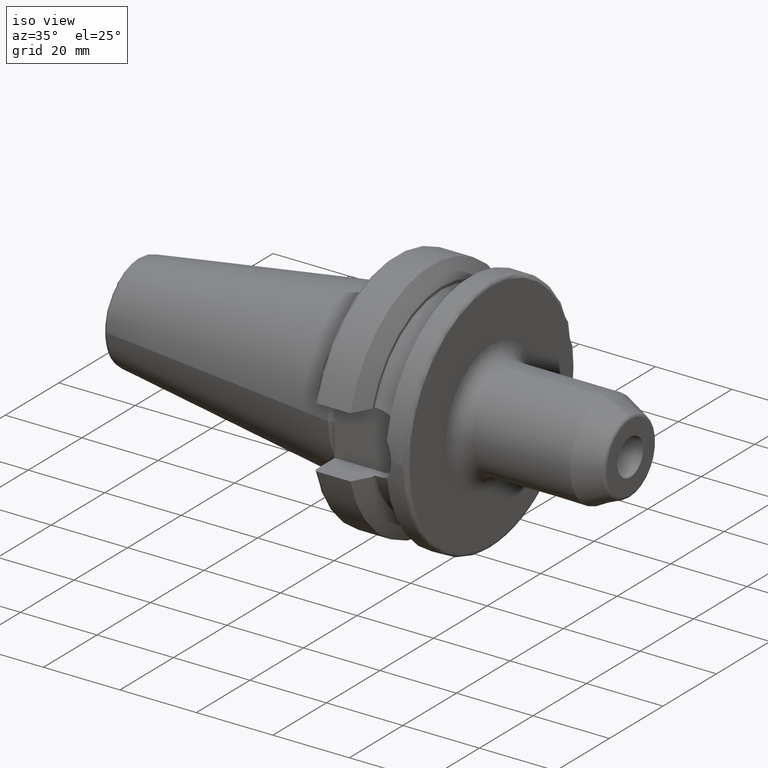
[diagram: clean part render]
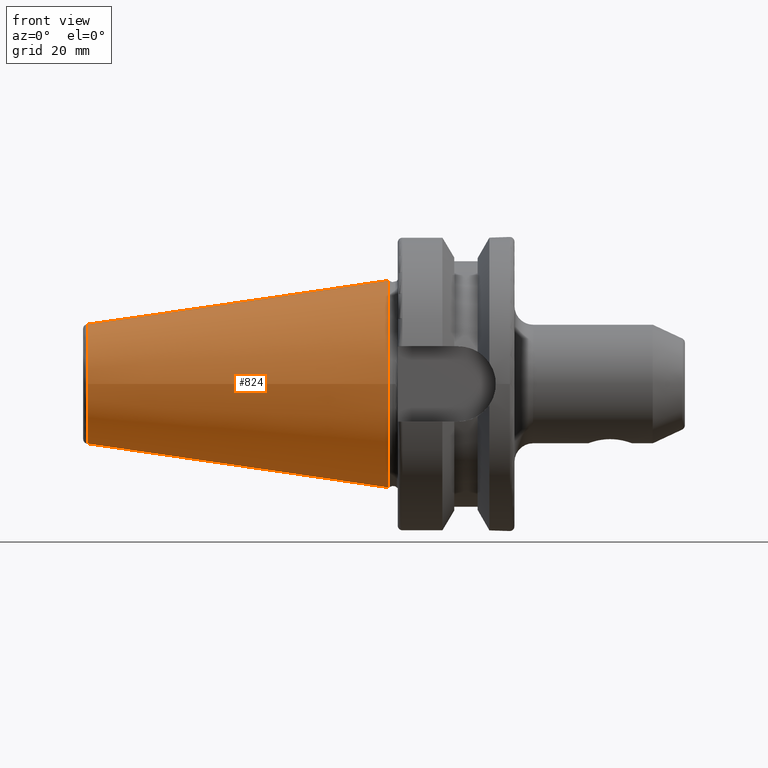
[diagram: tour spotlight — one face highlighted and labeled with its STEP entity id]
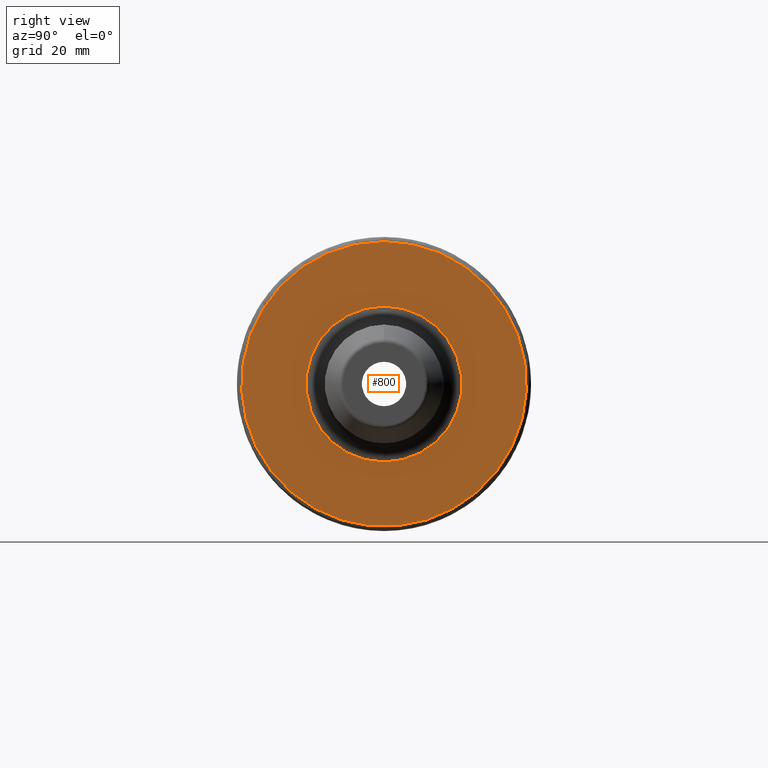
[diagram: tour spotlight — one face highlighted and labeled with its STEP entity id]
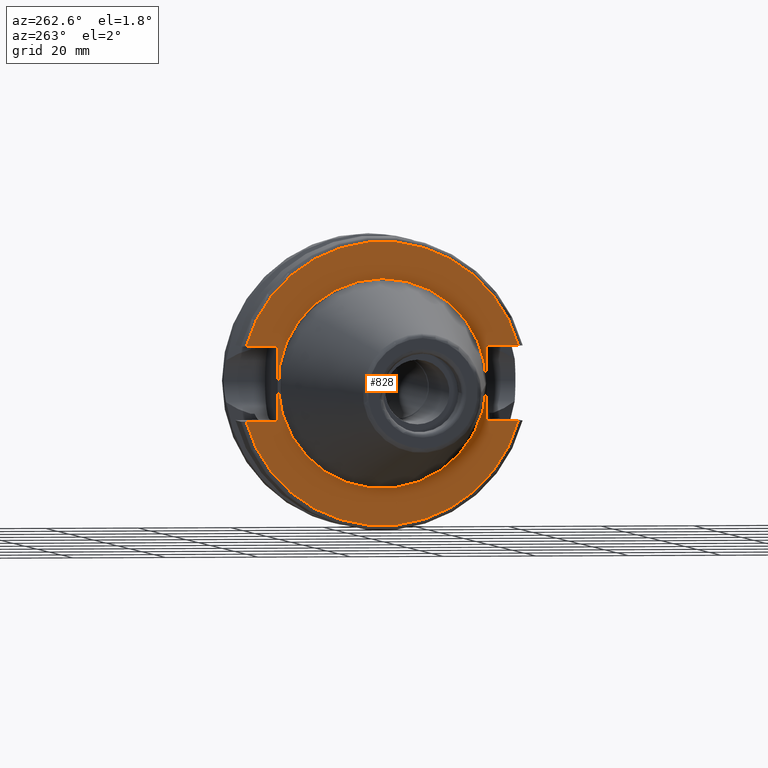
[diagram: tour spotlight — one face highlighted and labeled with its STEP entity id]
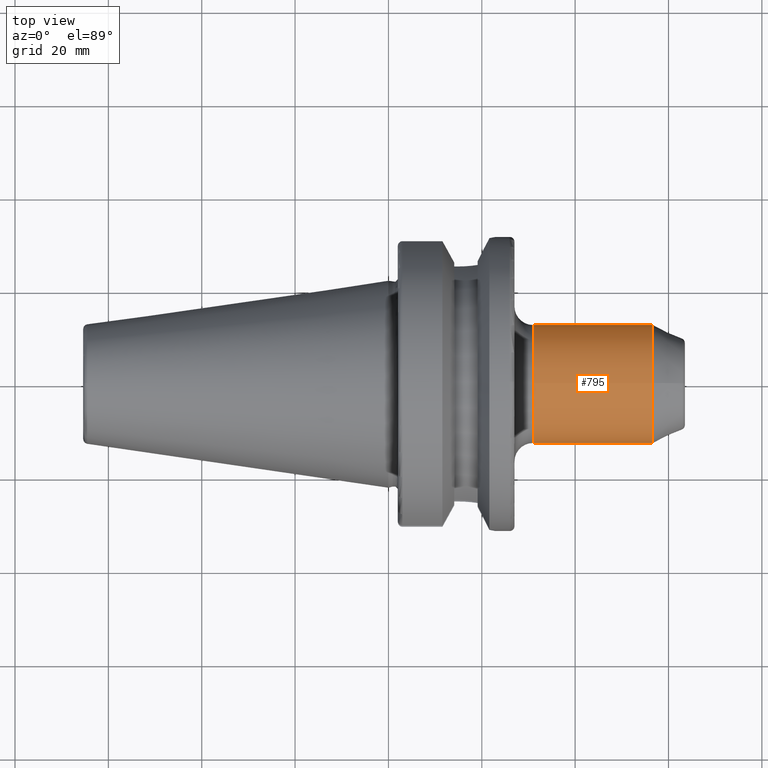
[diagram: tour spotlight — one face highlighted and labeled with its STEP entity id]
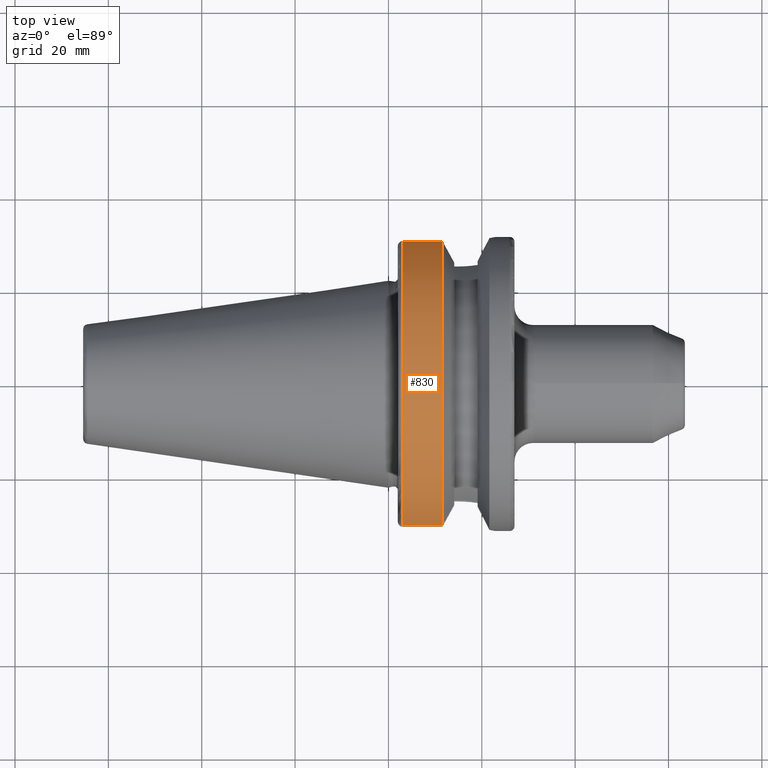
[diagram: tour spotlight — one face highlighted and labeled with its STEP entity id]
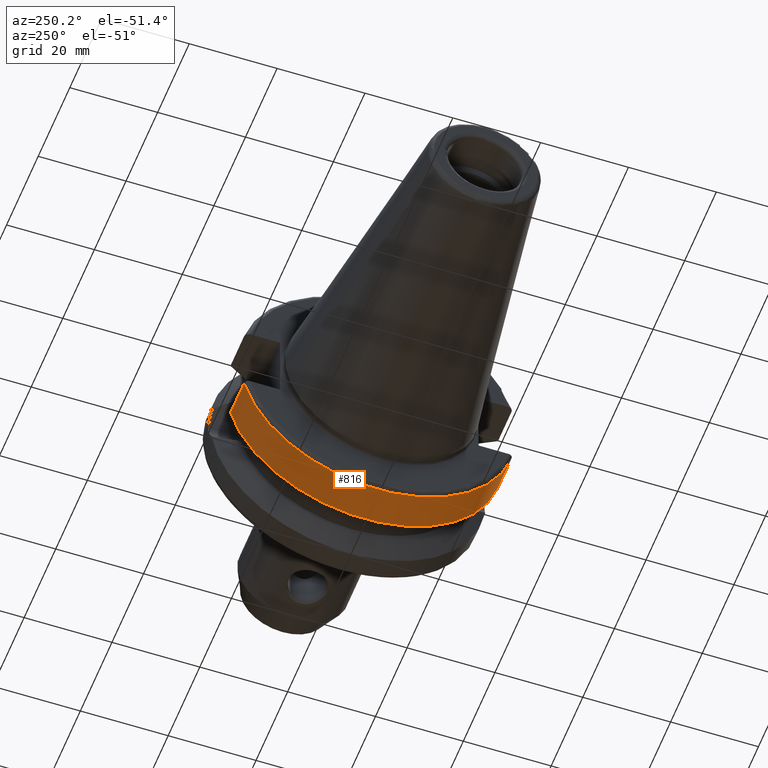
[diagram: tour spotlight — one face highlighted and labeled with its STEP entity id]
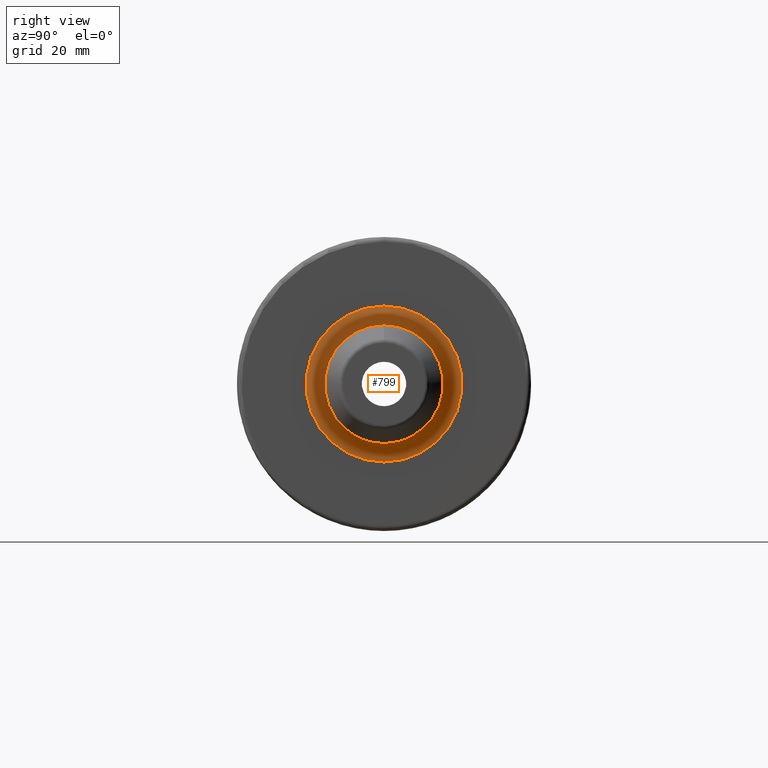
[diagram: tour spotlight — one face highlighted and labeled with its STEP entity id]
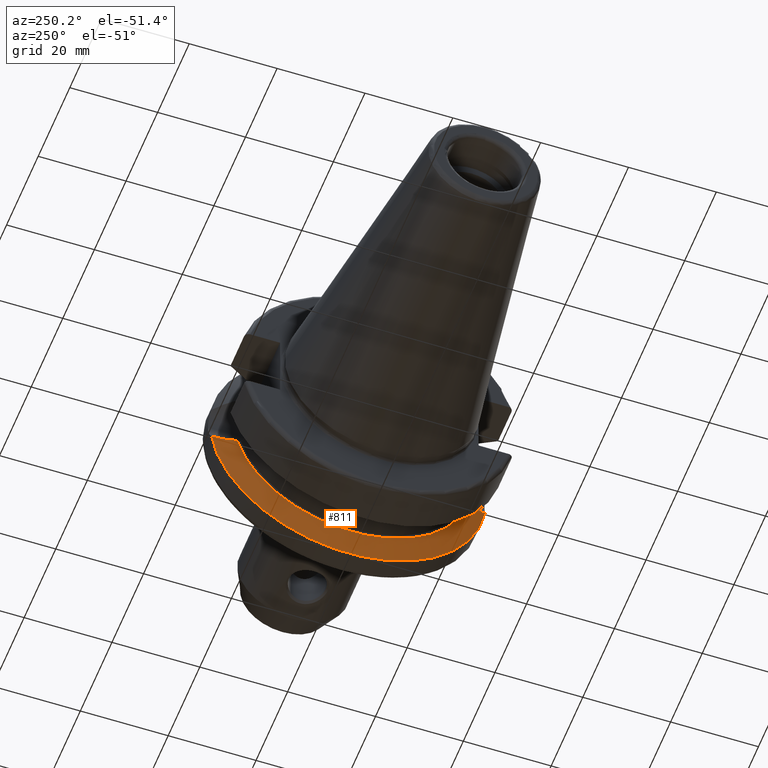
[diagram: tour spotlight — one face highlighted and labeled with its STEP entity id]
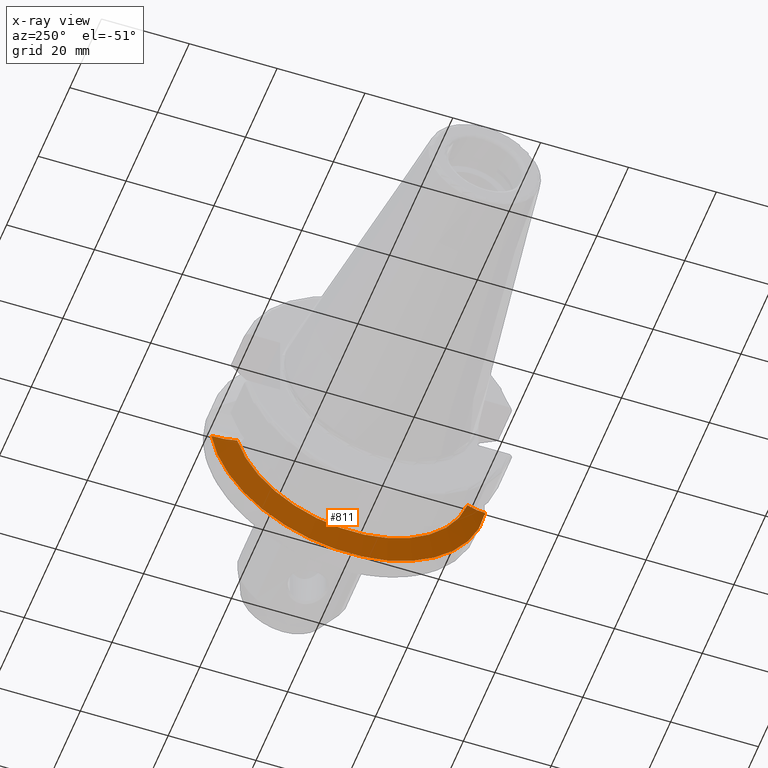
[diagram: x-ray of the same camera — body ghosted, this tour face saturated]
A machine part: a face-by-face anatomy tour. The part has 49 B-rep faces; the first image is the clean iso view, then the 8 largest visible faces are spotlighted one at a time (largest first), each with its STEP entity span.

Face 1 — front view, entity #824. In plain terms, the highlighted conical surface has half-angle 8.297 deg.
Definition (entity closure, byte-faithful):
#40=CONICAL_SURFACE('',#929,17.5186442890469,0.144812498238939);
#89=CIRCLE('',#925,12.8122885780937);
#90=CIRCLE('',#926,12.8122885780937);
#93=CIRCLE('',#930,22.225);
#159=FACE_OUTER_BOUND('',#212,.T.);
#212=EDGE_LOOP('',(#711,#712,#713,#714,#715));
#292=LINE('',#1705,#338);
#338=VECTOR('',#1141,17.5186442890469);
#409=VERTEX_POINT('',#1695);
#410=VERTEX_POINT('',#1696);
#412=VERTEX_POINT('',#1703);
#516=EDGE_CURVE('',#409,#410,#89,.T.);
#517=EDGE_CURVE('',#410,#409,#90,.T.);
#520=EDGE_CURVE('',#412,#412,#93,.T.);
#521=EDGE_CURVE('',#412,#409,#292,.T.);
#711=ORIENTED_EDGE('',*,*,#520,.F.);
#712=ORIENTED_EDGE('',*,*,#521,.T.);
#713=ORIENTED_EDGE('',*,*,#516,.T.);
#714=ORIENTED_EDGE('',*,*,#517,.T.);
#715=ORIENTED_EDGE('',*,*,#521,.F.);
#824=ADVANCED_FACE('',(#159),#40,.T.);
#925=AXIS2_PLACEMENT_3D('',#1697,#1129,#1130);
#926=AXIS2_PLACEMENT_3D('',#1698,#1131,#1132);
#929=AXIS2_PLACEMENT_3D('',#1702,#1137,#1138);
#930=AXIS2_PLACEMENT_3D('',#1704,#1139,#1140);
#1129=DIRECTION('center_axis',(1.,0.,0.));
#1130=DIRECTION('ref_axis',(0.,0.,-1.));
#1131=DIRECTION('center_axis',(1.,0.,0.));
#1132=DIRECTION('ref_axis',(0.,0.,-1.));
#1137=DIRECTION('center_axis',(1.,0.,0.));
#1138=DIRECTION('ref_axis',(0.,1.,0.));
#1139=DIRECTION('center_axis',(1.,0.,0.));
#1140=DIRECTION('ref_axis',(0.,0.,-1.));
#1141=DIRECTION('',(-0.989532981063282,0.144306893071729,1.76724974695192E-17));
#1695=CARTESIAN_POINT('',(-64.5443068930717,-12.8122885780937,-1.56905281969147E-15));
#1696=CARTESIAN_POINT('',(-64.5443068930717,-1.56905281969147E-15,12.8122885780937));
#1697=CARTESIAN_POINT('Origin',(-64.5443068930717,0.,0.));
#1698=CARTESIAN_POINT('Origin',(-64.5443068930717,0.,0.));
#1702=CARTESIAN_POINT('Origin',(-32.2721534465359,0.,0.));
#1703=CARTESIAN_POINT('',(4.44089209850063E-15,-22.225,-2.72177751110499E-15));
#1704=CARTESIAN_POINT('Origin',(0.,0.,0.));
#1705=CARTESIAN_POINT('',(-32.2721534465359,-17.5186442890469,-2.14541516539823E-15));

Face 2 — right view, entity #800. In plain terms, the highlighted planar face has unit normal (1, 0, 0).
Definition (entity closure, byte-faithful):
#20=PLANE('',#880);
#54=FACE_BOUND('',#187,.T.);
#67=CIRCLE('',#879,16.7);
#68=CIRCLE('',#881,30.5);
#135=FACE_OUTER_BOUND('',#186,.T.);
#186=EDGE_LOOP('',(#576));
#187=EDGE_LOOP('',(#577));
#354=VERTEX_POINT('',#1435);
#355=VERTEX_POINT('',#1439);
#439=EDGE_CURVE('',#354,#354,#67,.T.);
#440=EDGE_CURVE('',#355,#355,#68,.T.);
#576=ORIENTED_EDGE('',*,*,#440,.T.);
#577=ORIENTED_EDGE('',*,*,#439,.F.);
#800=ADVANCED_FACE('',(#135,#54),#20,.T.);
#879=AXIS2_PLACEMENT_3D('',#1437,#1001,#1002);
#880=AXIS2_PLACEMENT_3D('',#1438,#1003,#1004);
#881=AXIS2_PLACEMENT_3D('',#1440,#1005,#1006);
#1001=DIRECTION('center_axis',(1.,0.,0.));
#1002=DIRECTION('ref_axis',(0.,-1.22464679914735E-16,1.));
#1003=DIRECTION('center_axis',(1.,0.,0.));
#1004=DIRECTION('ref_axis',(0.,0.,-1.));
#1005=DIRECTION('center_axis',(1.,0.,0.));
#1006=DIRECTION('ref_axis',(0.,0.,-1.));
#1435=CARTESIAN_POINT('',(27.,4.09032030915216E-15,-16.7));
#1437=CARTESIAN_POINT('Origin',(27.,0.,0.));
#1438=CARTESIAN_POINT('Origin',(27.,0.,0.));
#1439=CARTESIAN_POINT('',(27.,-3.73517273739943E-15,30.5));
#1440=CARTESIAN_POINT('Origin',(27.,0.,0.));

Face 3 — auxiliary view, entity #828. In plain terms, the highlighted planar face has unit normal (-1, 0, 0).
Definition (entity closure, byte-faithful):
#29=PLANE('',#939);
#56=FACE_BOUND('',#217,.T.);
#86=CIRCLE('',#916,30.5);
#98=CIRCLE('',#938,22.5);
#99=CIRCLE('',#940,30.5);
#163=FACE_OUTER_BOUND('',#216,.T.);
#216=EDGE_LOOP('',(#730,#731,#732,#733,#734,#735,#736,#737));
#217=EDGE_LOOP('',(#738));
#268=LINE('',#1539,#314);
#272=LINE('',#1547,#318);
#275=LINE('',#1567,#321);
#286=LINE('',#1667,#332);
#289=LINE('',#1688,#335);
#291=LINE('',#1691,#337);
#314=VECTOR('',#1047,10.);
#318=VECTOR('',#1053,10.);
#321=VECTOR('',#1058,10.);
#332=VECTOR('',#1113,10.);
#335=VECTOR('',#1118,10.);
#337=VECTOR('',#1122,10.);
#377=VERTEX_POINT('',#1527);
#378=VERTEX_POINT('',#1538);
#380=VERTEX_POINT('',#1544);
#381=VERTEX_POINT('',#1546);
#396=VERTEX_POINT('',#1627);
#403=VERTEX_POINT('',#1664);
#404=VERTEX_POINT('',#1666);
#408=VERTEX_POINT('',#1687);
#416=VERTEX_POINT('',#1717);
#468=EDGE_CURVE('',#378,#377,#268,.T.);
#472=EDGE_CURVE('',#381,#380,#272,.T.);
#477=EDGE_CURVE('',#380,#378,#275,.T.);
#497=EDGE_CURVE('',#381,#396,#86,.T.);
#507=EDGE_CURVE('',#404,#403,#286,.T.);
#512=EDGE_CURVE('',#408,#396,#289,.T.);
#514=EDGE_CURVE('',#403,#408,#291,.T.);
#528=EDGE_CURVE('',#416,#416,#98,.T.);
#529=EDGE_CURVE('',#404,#377,#99,.T.);
#730=ORIENTED_EDGE('',*,*,#468,.T.);
#731=ORIENTED_EDGE('',*,*,#529,.F.);
#732=ORIENTED_EDGE('',*,*,#507,.T.);
#733=ORIENTED_EDGE('',*,*,#514,.T.);
#734=ORIENTED_EDGE('',*,*,#512,.T.);
#735=ORIENTED_EDGE('',*,*,#497,.F.);
#736=ORIENTED_EDGE('',*,*,#472,.T.);
#737=ORIENTED_EDGE('',*,*,#477,.T.);
#738=ORIENTED_EDGE('',*,*,#528,.T.);
#828=ADVANCED_FACE('',(#163,#56),#29,.T.);
#916=AXIS2_PLACEMENT_3D('',#1628,#1100,#1101);
#938=AXIS2_PLACEMENT_3D('',#1719,#1158,#1159);
#939=AXIS2_PLACEMENT_3D('',#1720,#1160,#1161);
#940=AXIS2_PLACEMENT_3D('',#1721,#1162,#1163);
#1047=DIRECTION('',(0.,-1.,0.));
#1053=DIRECTION('',(0.,1.,0.));
#1058=DIRECTION('',(0.,0.,1.));
#1100=DIRECTION('center_axis',(1.,0.,0.));
#1101=DIRECTION('ref_axis',(0.,0.,-1.));
#1113=DIRECTION('',(0.,-1.,0.));
#1118=DIRECTION('',(0.,1.,0.));
#1122=DIRECTION('',(0.,0.,-1.));
#1158=DIRECTION('center_axis',(1.,0.,0.));
#1159=DIRECTION('ref_axis',(0.,0.,-1.));
#1160=DIRECTION('center_axis',(-1.,0.,0.));
#1161=DIRECTION('ref_axis',(0.,0.,1.));
#1162=DIRECTION('center_axis',(1.,0.,0.));
#1163=DIRECTION('ref_axis',(0.,0.,-1.));
#1527=CARTESIAN_POINT('',(1.99999999999999,-29.4184890842477,8.05));
#1538=CARTESIAN_POINT('',(1.99999999999999,-22.6,8.05));
#1539=CARTESIAN_POINT('',(1.99999999999999,3.95,8.05));
#1544=CARTESIAN_POINT('',(1.99999999999999,-22.6,-8.05));
#1546=CARTESIAN_POINT('',(1.99999999999999,-29.4184890842477,-8.05));
#1547=CARTESIAN_POINT('',(1.99999999999999,3.95,-8.05));
#1567=CARTESIAN_POINT('',(1.99999999999999,-22.6,0.));
#1627=CARTESIAN_POINT('',(1.99999999999999,29.4184890842477,-8.05));
#1628=CARTESIAN_POINT('Origin',(1.99999999999999,0.,0.));
#1664=CARTESIAN_POINT('',(1.99999999999999,22.6,8.05));
#1666=CARTESIAN_POINT('',(1.99999999999999,29.4184890842477,8.05));
#1667=CARTESIAN_POINT('',(1.99999999999999,26.55,8.05));
#1687=CARTESIAN_POINT('',(1.99999999999999,22.6,-8.05));
#1688=CARTESIAN_POINT('',(1.99999999999999,26.55,-8.05));
#1691=CARTESIAN_POINT('',(1.99999999999999,22.6,0.));
#1717=CARTESIAN_POINT('',(2.,-2.75545529808154E-15,22.5));
#1719=CARTESIAN_POINT('Origin',(2.,0.,0.));
#1720=CARTESIAN_POINT('Origin',(1.99999999999999,30.5,0.));
#1721=CARTESIAN_POINT('Origin',(1.99999999999999,0.,0.));

Face 4 — top view, entity #795. In plain terms, the highlighted cylindrical surface (bore or boss wall) has radius 12.7 mm, axis along (1, 0, 0).
Definition (entity closure, byte-faithful):
#52=FACE_BOUND('',#180,.T.);
#59=CIRCLE('',#867,12.7);
#60=CIRCLE('',#868,12.7);
#61=CIRCLE('',#869,12.7);
#114=CYLINDRICAL_SURFACE('',#866,12.7);
#130=FACE_OUTER_BOUND('',#179,.T.);
#179=EDGE_LOOP('',(#555,#556,#557,#558,#559));
#180=EDGE_LOOP('',(#560));
#234=B_SPLINE_CURVE_WITH_KNOTS('',3,(#1343,#1344,#1345,#1346,#1347,#1348,
#1349,#1350,#1351,#1352,#1353,#1354,#1355,#1356,#1357,#1358,#1359,#1360,
#1361,#1362,#1363,#1364,#1365,#1366),.UNSPECIFIED.,.T.,.F.,(4,1,1,1,1,1,
1,1,1,1,1,1,1,1,1,1,1,1,1,1,1,4),(-4.45668328688433,-4.27477784660334,-4.09287240632235,
-4.00191968618185,-3.91096696604135,-3.72906152576036,-3.6077912322397,
-3.48652093871904,-3.4258857919587,-3.36525064519837,-3.24398035167771,
-3.12271005815705,-3.00143976463639,-2.81953432435539,-2.7285816042149,
-2.6376288840744,-2.45572344379341,-2.36477072365291,-2.27381800351241,
-2.18286528337192,-2.09191256323142,-1.91000712295043),.UNSPECIFIED.);
#254=LINE('',#1419,#300);
#300=VECTOR('',#977,12.7);
#344=VERTEX_POINT('',#1316);
#348=VERTEX_POINT('',#1416);
#349=VERTEX_POINT('',#1418);
#350=VERTEX_POINT('',#1420);
#425=EDGE_CURVE('',#344,#344,#234,.T.);
#429=EDGE_CURVE('',#348,#348,#59,.T.);
#430=EDGE_CURVE('',#348,#349,#254,.T.);
#431=EDGE_CURVE('',#350,#349,#60,.T.);
#432=EDGE_CURVE('',#349,#350,#61,.T.);
#555=ORIENTED_EDGE('',*,*,#429,.F.);
#556=ORIENTED_EDGE('',*,*,#430,.T.);
#557=ORIENTED_EDGE('',*,*,#431,.F.);
#558=ORIENTED_EDGE('',*,*,#432,.F.);
#559=ORIENTED_EDGE('',*,*,#430,.F.);
#560=ORIENTED_EDGE('',*,*,#425,.F.);
#795=ADVANCED_FACE('',(#130,#52),#114,.T.);
#866=AXIS2_PLACEMENT_3D('',#1415,#973,#974);
#867=AXIS2_PLACEMENT_3D('',#1417,#975,#976);
#868=AXIS2_PLACEMENT_3D('',#1421,#978,#979);
#869=AXIS2_PLACEMENT_3D('',#1422,#980,#981);
#973=DIRECTION('center_axis',(1.,0.,0.));
#974=DIRECTION('ref_axis',(0.,0.,-1.));
#975=DIRECTION('center_axis',(1.,0.,0.));
#976=DIRECTION('ref_axis',(0.,0.,-1.));
#977=DIRECTION('',(-1.,0.,0.));
#978=DIRECTION('center_axis',(-1.,0.,0.));
#979=DIRECTION('ref_axis',(0.,-1.22464679914735E-16,1.));
#980=DIRECTION('center_axis',(-1.,0.,0.));
#981=DIRECTION('ref_axis',(0.,-1.22464679914735E-16,1.));
#1316=CARTESIAN_POINT('',(42.809,5.55111512312578E-16,-12.7));
#1343=CARTESIAN_POINT('Ctrl Pts',(42.809,5.55111512312578E-16,-12.7));
#1344=CARTESIAN_POINT('Ctrl Pts',(42.809,0.678691179796548,-12.7));
#1345=CARTESIAN_POINT('Ctrl Pts',(43.1426237349154,2.1410850647978,-12.5709707517774));
#1346=CARTESIAN_POINT('Ctrl Pts',(44.2440968507043,3.48163167891657,-12.2253758395461));
#1347=CARTESIAN_POINT('Ctrl Pts',(45.424274449512,4.23350340535131,-11.9776015325168));
#1348=CARTESIAN_POINT('Ctrl Pts',(46.8087834400603,4.70286465779553,-11.7984832982871));
#1349=CARTESIAN_POINT('Ctrl Pts',(48.312946158076,4.70488742924253,-11.7978602615708));
#1350=CARTESIAN_POINT('Ctrl Pts',(49.915048678653,4.08752130223952,-12.031889429135));
#1351=CARTESIAN_POINT('Ctrl Pts',(50.8085632979052,3.36413828207349,-12.2548650858912));
#1352=CARTESIAN_POINT('Ctrl Pts',(51.3781076795071,2.66077727150107,-12.4221067919997));
#1353=CARTESIAN_POINT('Ctrl Pts',(51.8603922273093,1.84577953997939,-12.5793318041969));
#1354=CARTESIAN_POINT('Ctrl Pts',(52.204746661525,0.67857534722989,-12.7055654498687));
#1355=CARTESIAN_POINT('Ctrl Pts',(52.2099153079322,-0.683357349930136,-12.7072403370155));
#1356=CARTESIAN_POINT('Ctrl Pts',(51.7008577376387,-2.3293459648484,-12.5225228743708));
#1357=CARTESIAN_POINT('Ctrl Pts',(50.7614771812229,-3.47457116212008,-12.2277784213383));
#1358=CARTESIAN_POINT('Ctrl Pts',(49.5787690057998,-4.22742352647024,-11.9795839788518));
#1359=CARTESIAN_POINT('Ctrl Pts',(48.1913009274975,-4.70005097218349,-11.7993850887475));
#1360=CARTESIAN_POINT('Ctrl Pts',(46.8054433185572,-4.69832757739482,-11.800262137122));
#1361=CARTESIAN_POINT('Ctrl Pts',(45.4271971045692,-4.23158280612736,-11.9778639727223));
#1362=CARTESIAN_POINT('Ctrl Pts',(44.5277392460194,-3.6572565523506,-12.1679003448688));
#1363=CARTESIAN_POINT('Ctrl Pts',(43.8218970580282,-2.95927964937046,-12.3586970308523));
#1364=CARTESIAN_POINT('Ctrl Pts',(43.0488962370263,-1.76414926934346,-12.6073995476063));
#1365=CARTESIAN_POINT('Ctrl Pts',(42.809,-0.678691179796487,-12.7));
#1366=CARTESIAN_POINT('Ctrl Pts',(42.809,1.94289029309402E-15,-12.7));
#1415=CARTESIAN_POINT('Origin',(41.8187889271847,0.,0.));
#1416=CARTESIAN_POINT('',(56.6375778543694,-1.55530143491714E-15,12.7));
#1417=CARTESIAN_POINT('Origin',(56.6375778543694,0.,0.));
#1418=CARTESIAN_POINT('',(31.,-1.55530143491714E-15,12.7));
#1419=CARTESIAN_POINT('',(41.8187889271847,-1.55530143491714E-15,12.7));
#1420=CARTESIAN_POINT('',(31.,0.,-12.7));
#1421=CARTESIAN_POINT('Origin',(31.,0.,0.));
#1422=CARTESIAN_POINT('Origin',(31.,0.,0.));

Face 5 — top view, entity #830. In plain terms, the highlighted cylindrical surface (partial cylindrical patch) has radius 31.5 mm, axis along (1, 0, 0).
Definition (entity closure, byte-faithful):
#100=CIRCLE('',#942,31.5);
#101=CIRCLE('',#944,31.5000000000001);
#124=CYLINDRICAL_SURFACE('',#943,31.5);
#165=FACE_OUTER_BOUND('',#219,.T.);
#219=EDGE_LOOP('',(#743,#744,#745,#746));
#267=LINE('',#1526,#313);
#287=LINE('',#1680,#333);
#313=VECTOR('',#1046,10.);
#333=VECTOR('',#1114,10.);
#375=VERTEX_POINT('',#1521);
#376=VERTEX_POINT('',#1525);
#405=VERTEX_POINT('',#1668);
#406=VERTEX_POINT('',#1679);
#466=EDGE_CURVE('',#376,#375,#267,.T.);
#509=EDGE_CURVE('',#406,#405,#287,.T.);
#530=EDGE_CURVE('',#405,#376,#100,.T.);
#531=EDGE_CURVE('',#406,#375,#101,.T.);
#743=ORIENTED_EDGE('',*,*,#466,.T.);
#744=ORIENTED_EDGE('',*,*,#531,.F.);
#745=ORIENTED_EDGE('',*,*,#509,.T.);
#746=ORIENTED_EDGE('',*,*,#530,.T.);
#830=ADVANCED_FACE('',(#165),#124,.T.);
#942=AXIS2_PLACEMENT_3D('',#1723,#1166,#1167);
#943=AXIS2_PLACEMENT_3D('',#1724,#1168,#1169);
#944=AXIS2_PLACEMENT_3D('',#1725,#1170,#1171);
#1046=DIRECTION('',(1.,0.,0.));
#1114=DIRECTION('',(-1.,0.,0.));
#1166=DIRECTION('center_axis',(1.,0.,0.));
#1167=DIRECTION('ref_axis',(0.,0.,-1.));
#1168=DIRECTION('center_axis',(1.,0.,0.));
#1169=DIRECTION('ref_axis',(0.,1.,0.));
#1170=DIRECTION('center_axis',(1.,0.,0.));
#1171=DIRECTION('ref_axis',(0.,0.,-1.));
#1521=CARTESIAN_POINT('',(11.5690363073382,-30.4540227227866,8.05));
#1525=CARTESIAN_POINT('',(2.99999999999999,-30.4540227227866,8.05));
#1526=CARTESIAN_POINT('',(7.28451815366907,-30.4540227227866,8.05));
#1668=CARTESIAN_POINT('',(2.99999999999999,30.4540227227866,8.05));
#1679=CARTESIAN_POINT('',(11.5690363073382,30.4540227227866,8.05));
#1680=CARTESIAN_POINT('',(7.28451815366907,30.4540227227866,8.05));
#1723=CARTESIAN_POINT('Origin',(2.99999999999999,0.,0.));
#1724=CARTESIAN_POINT('Origin',(7.28451815366907,0.,0.));
#1725=CARTESIAN_POINT('Origin',(11.5690363073382,0.,0.));

Face 6 — auxiliary view, entity #816. In plain terms, the highlighted cylindrical surface (partial cylindrical patch) has radius 31.5 mm, axis along (1, 0, 0).
Definition (entity closure, byte-faithful):
#84=CIRCLE('',#912,31.5000000000001);
#85=CIRCLE('',#914,31.5);
#121=CYLINDRICAL_SURFACE('',#913,31.5);
#151=FACE_OUTER_BOUND('',#204,.T.);
#204=EDGE_LOOP('',(#664,#665,#666,#667));
#273=LINE('',#1560,#319);
#280=LINE('',#1625,#326);
#319=VECTOR('',#1054,10.);
#326=VECTOR('',#1097,10.);
#382=VERTEX_POINT('',#1548);
#383=VERTEX_POINT('',#1559);
#394=VERTEX_POINT('',#1617);
#395=VERTEX_POINT('',#1623);
#474=EDGE_CURVE('',#383,#382,#273,.T.);
#493=EDGE_CURVE('',#383,#394,#84,.T.);
#495=EDGE_CURVE('',#382,#395,#85,.T.);
#496=EDGE_CURVE('',#395,#394,#280,.T.);
#664=ORIENTED_EDGE('',*,*,#474,.T.);
#665=ORIENTED_EDGE('',*,*,#495,.T.);
#666=ORIENTED_EDGE('',*,*,#496,.T.);
#667=ORIENTED_EDGE('',*,*,#493,.F.);
#816=ADVANCED_FACE('',(#151),#121,.T.);
#912=AXIS2_PLACEMENT_3D('',#1618,#1091,#1092);
#913=AXIS2_PLACEMENT_3D('',#1622,#1093,#1094);
#914=AXIS2_PLACEMENT_3D('',#1624,#1095,#1096);
#1054=DIRECTION('',(-1.,0.,0.));
#1091=DIRECTION('center_axis',(1.,0.,0.));
#1092=DIRECTION('ref_axis',(0.,0.,-1.));
#1093=DIRECTION('center_axis',(1.,0.,0.));
#1094=DIRECTION('ref_axis',(0.,1.,0.));
#1095=DIRECTION('center_axis',(1.,0.,0.));
#1096=DIRECTION('ref_axis',(0.,0.,-1.));
#1097=DIRECTION('',(1.,0.,0.));
#1548=CARTESIAN_POINT('',(2.99999999999999,-30.4540227227866,-8.05));
#1559=CARTESIAN_POINT('',(11.5690363073382,-30.4540227227866,-8.05));
#1560=CARTESIAN_POINT('',(7.28451815366907,-30.4540227227866,-8.05));
#1617=CARTESIAN_POINT('',(11.5690363073382,30.4540227227866,-8.05));
#1618=CARTESIAN_POINT('Origin',(11.5690363073382,0.,0.));
#1622=CARTESIAN_POINT('Origin',(7.28451815366907,0.,0.));
#1623=CARTESIAN_POINT('',(2.99999999999999,30.4540227227866,-8.05));
#1624=CARTESIAN_POINT('Origin',(2.99999999999999,0.,0.));
#1625=CARTESIAN_POINT('',(7.28451815366907,30.4540227227866,-8.05));

Face 7 — right view, entity #799. In plain terms, the highlighted toroidal blend (fillet) surface has major radius 16.7 mm and minor (blend) radius 4 mm.
Definition (entity closure, byte-faithful):
#45=TOROIDAL_SURFACE('',#877,16.7,4.);
#60=CIRCLE('',#868,12.7);
#61=CIRCLE('',#869,12.7);
#66=CIRCLE('',#878,4.);
#67=CIRCLE('',#879,16.7);
#134=FACE_OUTER_BOUND('',#185,.T.);
#185=EDGE_LOOP('',(#571,#572,#573,#574,#575));
#349=VERTEX_POINT('',#1418);
#350=VERTEX_POINT('',#1420);
#354=VERTEX_POINT('',#1435);
#431=EDGE_CURVE('',#350,#349,#60,.T.);
#432=EDGE_CURVE('',#349,#350,#61,.T.);
#438=EDGE_CURVE('',#350,#354,#66,.T.);
#439=EDGE_CURVE('',#354,#354,#67,.T.);
#571=ORIENTED_EDGE('',*,*,#431,.T.);
#572=ORIENTED_EDGE('',*,*,#432,.T.);
#573=ORIENTED_EDGE('',*,*,#438,.T.);
#574=ORIENTED_EDGE('',*,*,#439,.T.);
#575=ORIENTED_EDGE('',*,*,#438,.F.);
#799=ADVANCED_FACE('',(#134),#45,.F.);
#868=AXIS2_PLACEMENT_3D('',#1421,#978,#979);
#869=AXIS2_PLACEMENT_3D('',#1422,#980,#981);
#877=AXIS2_PLACEMENT_3D('',#1434,#997,#998);
#878=AXIS2_PLACEMENT_3D('',#1436,#999,#1000);
#879=AXIS2_PLACEMENT_3D('',#1437,#1001,#1002);
#978=DIRECTION('center_axis',(-1.,0.,0.));
#979=DIRECTION('ref_axis',(0.,-1.22464679914735E-16,1.));
#980=DIRECTION('center_axis',(-1.,0.,0.));
#981=DIRECTION('ref_axis',(0.,-1.22464679914735E-16,1.));
#997=DIRECTION('center_axis',(-1.,0.,0.));
#998=DIRECTION('ref_axis',(0.,0.,1.));
#999=DIRECTION('center_axis',(0.,-1.,1.22464679914735E-16));
#1000=DIRECTION('ref_axis',(0.,-1.22464679914735E-16,-1.));
#1001=DIRECTION('center_axis',(1.,0.,0.));
#1002=DIRECTION('ref_axis',(0.,-1.22464679914735E-16,1.));
#1418=CARTESIAN_POINT('',(31.,-1.55530143491714E-15,12.7));
#1420=CARTESIAN_POINT('',(31.,0.,-12.7));
#1421=CARTESIAN_POINT('Origin',(31.,0.,0.));
#1422=CARTESIAN_POINT('Origin',(31.,0.,0.));
#1434=CARTESIAN_POINT('Origin',(31.,0.,0.));
#1435=CARTESIAN_POINT('',(27.,4.09032030915216E-15,-16.7));
#1436=CARTESIAN_POINT('Origin',(31.,-2.04516015457608E-15,-16.7));
#1437=CARTESIAN_POINT('Origin',(27.,0.,0.));

Face 8 — auxiliary view, entity #811. An x-ray twin of the same camera follows (body ghosted, this face saturated) — the face is partly hidden behind the body. In plain terms, the highlighted conical surface has half-angle 60.125 deg.
Definition (entity closure, byte-faithful):
#37=CONICAL_SURFACE('',#903,29.2970358274569,1.0493792127616);
#77=CIRCLE('',#900,31.5);
#80=CIRCLE('',#904,27.0940716549138);
#146=FACE_OUTER_BOUND('',#199,.T.);
#199=EDGE_LOOP('',(#642,#643,#644,#645));
#238=B_SPLINE_CURVE_WITH_KNOTS('',3,(#1475,#1476,#1477,#1478,#1479,#1480),
 .UNSPECIFIED.,.F.,.F.,(4,2,4),(3.12975744792551,3.6269928875698,3.7084873746139),
 .UNSPECIFIED.);
#246=B_SPLINE_CURVE_WITH_KNOTS('',3,(#1591,#1592,#1593,#1594,#1595,#1596),
 .UNSPECIFIED.,.F.,.F.,(4,2,4),(1.46421027899563,1.54570476603974,2.04294020568402),
 .UNSPECIFIED.);
#364=VERTEX_POINT('',#1472);
#365=VERTEX_POINT('',#1474);
#387=VERTEX_POINT('',#1573);
#389=VERTEX_POINT('',#1589);
#454=EDGE_CURVE('',#365,#364,#238,.T.);
#480=EDGE_CURVE('',#365,#387,#77,.T.);
#484=EDGE_CURVE('',#364,#389,#80,.T.);
#485=EDGE_CURVE('',#389,#387,#246,.T.);
#642=ORIENTED_EDGE('',*,*,#454,.T.);
#643=ORIENTED_EDGE('',*,*,#484,.T.);
#644=ORIENTED_EDGE('',*,*,#485,.T.);
#645=ORIENTED_EDGE('',*,*,#480,.F.);
#811=ADVANCED_FACE('',(#146),#37,.T.);
#900=AXIS2_PLACEMENT_3D('',#1574,#1064,#1065);
#903=AXIS2_PLACEMENT_3D('',#1588,#1070,#1071);
#904=AXIS2_PLACEMENT_3D('',#1590,#1072,#1073);
#1064=DIRECTION('center_axis',(1.,0.,0.));
#1065=DIRECTION('ref_axis',(0.,0.,-1.));
#1070=DIRECTION('center_axis',(1.,0.,0.));
#1071=DIRECTION('ref_axis',(0.,1.,0.));
#1072=DIRECTION('center_axis',(1.,0.,0.));
#1073=DIRECTION('ref_axis',(0.,0.,-1.));
#1472=CARTESIAN_POINT('',(19.1,-26.201311395455,-6.89782574439221));
#1474=CARTESIAN_POINT('',(21.6309636926618,-31.1782420264945,-4.49079326370462));
#1475=CARTESIAN_POINT('Ctrl Pts',(21.6309636926618,-31.1782420264945,-4.49079326370461));
#1476=CARTESIAN_POINT('Ctrl Pts',(20.9728756148302,-29.8797957262939,-5.46983244373119));
#1477=CARTESIAN_POINT('Ctrl Pts',(20.1784155384866,-28.3157123387483,-6.1823136897693));
#1478=CARTESIAN_POINT('Ctrl Pts',(19.3406963650696,-26.6728819297427,-6.74867108656043));
#1479=CARTESIAN_POINT('Ctrl Pts',(19.2210929544554,-26.438473693351,-6.82497151762397));
#1480=CARTESIAN_POINT('Ctrl Pts',(19.1,-26.201311395455,-6.89782574439222));
#1573=CARTESIAN_POINT('',(21.6309636926618,31.1782420264945,-4.49079326370462));
#1574=CARTESIAN_POINT('Origin',(21.6309636926618,0.,0.));
#1588=CARTESIAN_POINT('Origin',(20.3654818463309,0.,0.));
#1589=CARTESIAN_POINT('',(19.1,26.201311395455,-6.89782574439221));
#1590=CARTESIAN_POINT('Origin',(19.1,0.,0.));
#1591=CARTESIAN_POINT('Ctrl Pts',(19.1,26.201311395455,-6.89782574439221));
#1592=CARTESIAN_POINT('Ctrl Pts',(19.2210929544554,26.438473693351,-6.82497151762396));
#1593=CARTESIAN_POINT('Ctrl Pts',(19.3406963650696,26.6728819297427,-6.74867108656043));
#1594=CARTESIAN_POINT('Ctrl Pts',(20.1784155384866,28.3157123387483,-6.1823136897693));
#1595=CARTESIAN_POINT('Ctrl Pts',(20.9728756148302,29.8797957262938,-5.46983244373119));
#1596=CARTESIAN_POINT('Ctrl Pts',(21.6309636926618,31.1782420264945,-4.49079326370462));